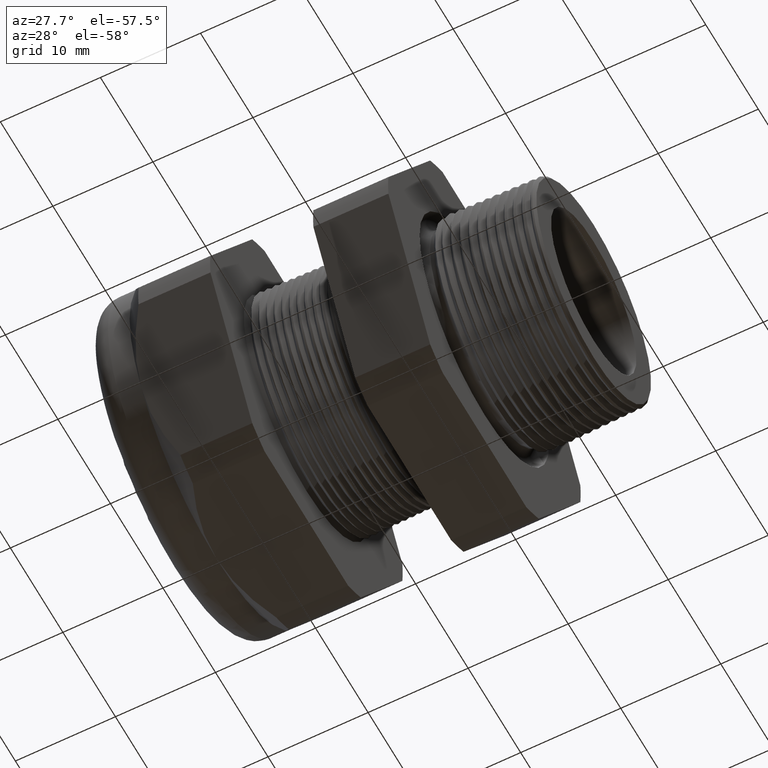
[diagram: clean part render]
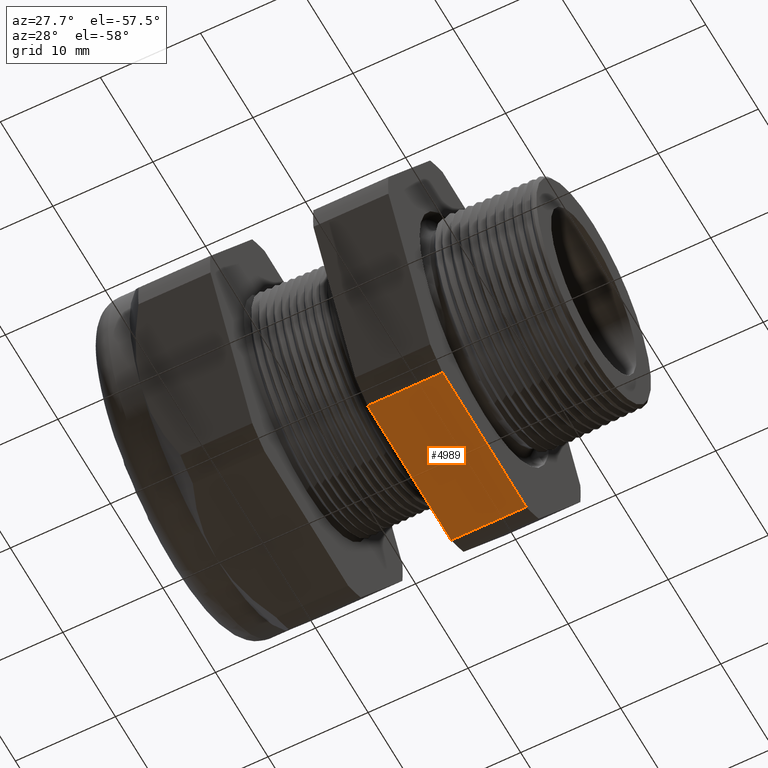
[diagram: same view with one face highlighted and labeled with its STEP entity id]
A machine part, auxiliary view. The second image highlights one B-rep face of the part: STEP entity #4989.
In plain terms, the highlighted planar face has unit normal (0, 0, -1).
Its self-contained STEP definition (entity closure, byte-faithful):
#2848 = VECTOR ( 'NONE', #2909, 39.37007874015748100 ) ;
#2849 = CARTESIAN_POINT ( 'NONE',  ( -0.3100000000000000000, 1.300000000000000000, -0.6500000000000001300 ) ) ;
#2850 = LINE ( 'NONE', #2849, #2848 ) ;
#2851 = CARTESIAN_POINT ( 'NONE',  ( -0.3100000000000000000, -0.3131489262315934100, -0.6500000000000001300 ) ) ;
#2908 = CARTESIAN_POINT ( 'NONE',  ( -0.3100000000000000000, 0.3131489262315934100, -0.6500000000000001300 ) ) ;
#2909 = DIRECTION ( 'NONE',  ( 0.0000000000000000000, 1.000000000000000000, 0.0000000000000000000 ) ) ;
#3036 = CARTESIAN_POINT ( 'NONE',  ( -0.6052755905511809600, 1.300000000000000000, -0.6500000000000001300 ) ) ;
#3037 = LINE ( 'NONE', #3036, #3101 ) ;
#3038 = CARTESIAN_POINT ( 'NONE',  ( -0.6052755905511810800, 0.3131489262315934100, -0.6500000000000001300 ) ) ;
#3099 = CARTESIAN_POINT ( 'NONE',  ( -0.6052755905511810800, -0.3131489262315934100, -0.6500000000000001300 ) ) ;
#3100 = DIRECTION ( 'NONE',  ( 0.0000000000000000000, -1.000000000000000000, 0.0000000000000000000 ) ) ;
#3101 = VECTOR ( 'NONE', #3100, 39.37007874015748100 ) ;
#3102 = PLANE ( 'NONE',  #3165 ) ;
#3103 = FACE_OUTER_BOUND ( 'NONE', #4990, .T. ) ;
#3104 = DIRECTION ( 'NONE',  ( -1.000000000000000000, 0.0000000000000000000, 0.0000000000000000000 ) ) ;
#3105 = VECTOR ( 'NONE', #3104, 39.37007874015748100 ) ;
#3106 = CARTESIAN_POINT ( 'NONE',  ( 0.1200000000000000900, -0.3131489262315934100, -0.6500000000000001300 ) ) ;
#3107 = LINE ( 'NONE', #3106, #3105 ) ;
#3162 = DIRECTION ( 'NONE',  ( -1.000000000000000000, 0.0000000000000000000, 0.0000000000000000000 ) ) ;
#3163 = DIRECTION ( 'NONE',  ( 0.0000000000000000000, 0.0000000000000000000, -1.000000000000000000 ) ) ;
#3164 = CARTESIAN_POINT ( 'NONE',  ( 0.1200000000000000900, 0.3131489262315934100, -0.6500000000000001300 ) ) ;
#3165 = AXIS2_PLACEMENT_3D ( 'NONE', #3164, #3163, #3162 ) ;
#3166 = DIRECTION ( 'NONE',  ( -1.000000000000000000, 0.0000000000000000000, 0.0000000000000000000 ) ) ;
#3167 = VECTOR ( 'NONE', #3166, 39.37007874015748100 ) ;
#3169 = CARTESIAN_POINT ( 'NONE',  ( 0.1200000000000000900, 0.3131489262315934100, -0.6500000000000001300 ) ) ;
#3174 = LINE ( 'NONE', #3169, #3167 ) ;
#4834 = VERTEX_POINT ( 'NONE', #2851 ) ;
#4836 = EDGE_CURVE ( 'NONE', #4834, #4837, #2850, .T. ) ;
#4837 = VERTEX_POINT ( 'NONE', #2908 ) ;
#4939 = VERTEX_POINT ( 'NONE', #3038 ) ;
#4941 = EDGE_CURVE ( 'NONE', #4939, #4942, #3037, .T. ) ;
#4942 = VERTEX_POINT ( 'NONE', #3099 ) ;
#4987 = EDGE_CURVE ( 'NONE', #4834, #4942, #3107, .T. ) ;
#4989 = ADVANCED_FACE ( 'NONE', ( #3103 ), #3102, .T. ) ;
#4990 = EDGE_LOOP ( 'NONE', ( #4991, #5042, #5043, #5045 ) ) ;
#4991 = ORIENTED_EDGE ( 'NONE', *, *, #4987, .T. ) ;
#5042 = ORIENTED_EDGE ( 'NONE', *, *, #4941, .F. ) ;
#5043 = ORIENTED_EDGE ( 'NONE', *, *, #5044, .F. ) ;
#5044 = EDGE_CURVE ( 'NONE', #4837, #4939, #3174, .T. ) ;
#5045 = ORIENTED_EDGE ( 'NONE', *, *, #4836, .F. ) ;